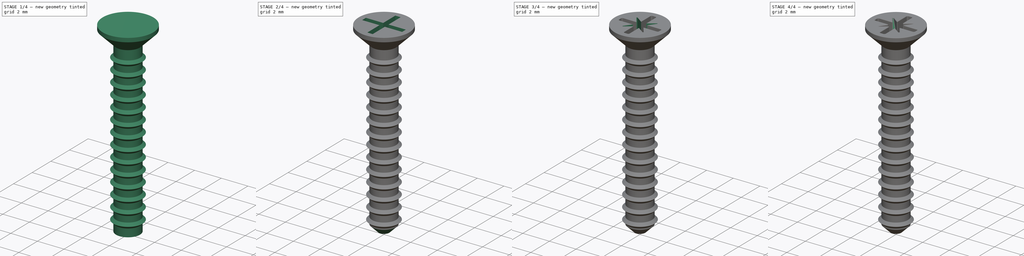
[diagram: build sequence overview — one tinted view per stage of 4, left to right]
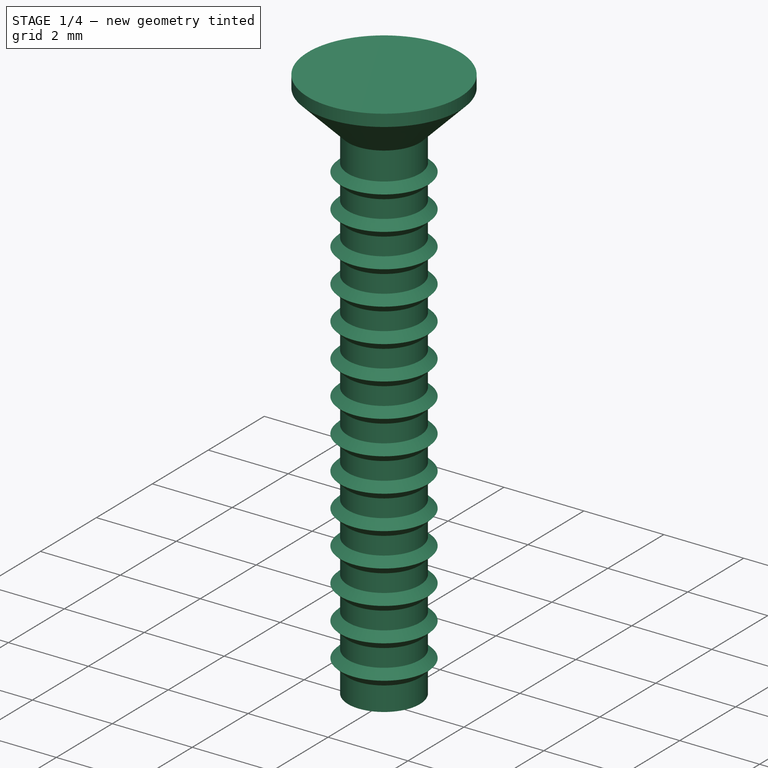
[diagram: stage 1 of 4 — iso view after this stage's code; geometry added in this stage tinted green]
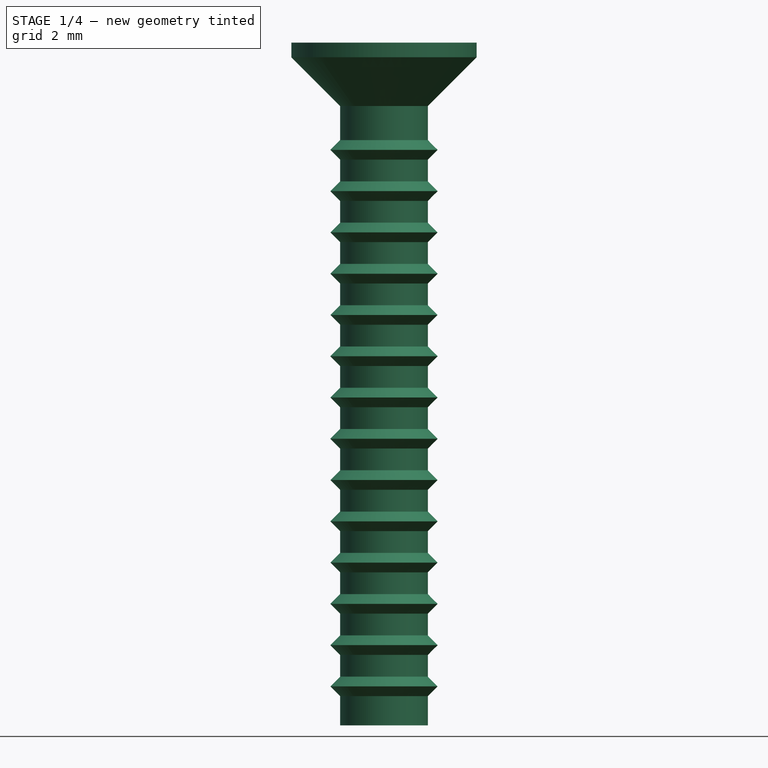
[diagram: stage 1 of 4 — front view after this stage's code; geometry added in this stage tinted green]
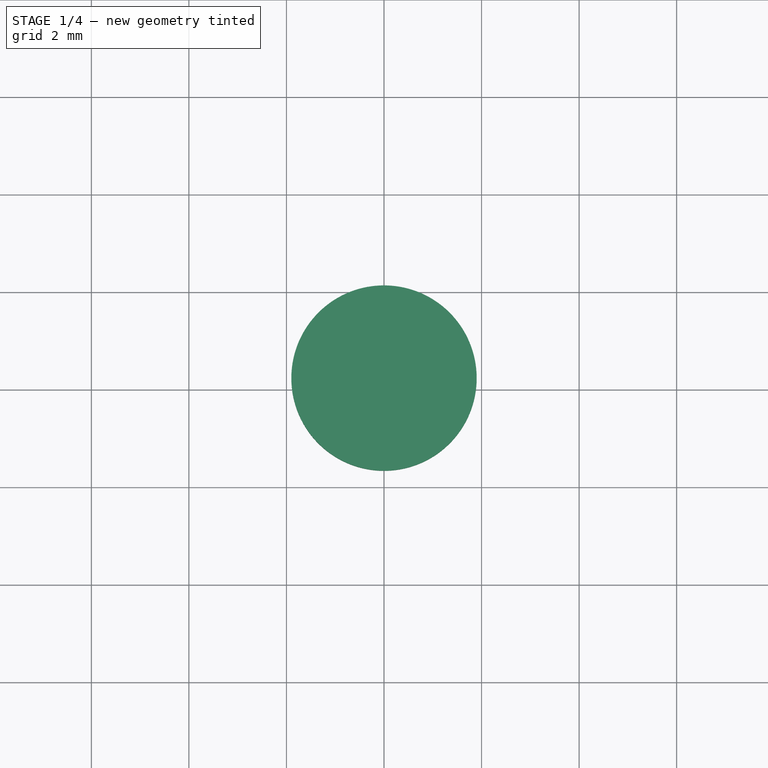
[diagram: stage 1 of 4 — top view after this stage's code; geometry added in this stage tinted green]
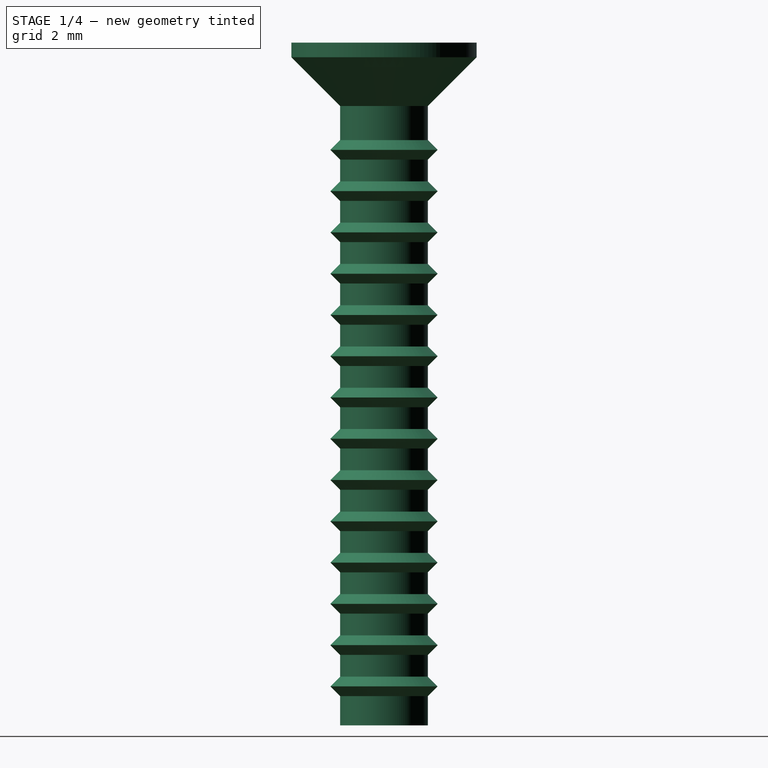
[diagram: stage 1 of 4 — right view after this stage's code; geometry added in this stage tinted green]
FCSTD DOCUMENT  (FreeCAD 0.18R16131 (Git))
Label: screw
License: All rights reserved
LicenseURL: http://en.wikipedia.org/wiki/All_rights_reserved
objects: Sketcher::SketchObject×4, PartDesign::Revolution×2, PartDesign::Chamfer×2, PartDesign::Pocket×2, PartDesign::PolarPattern×2, PartDesign::Fillet×2, PartDesign::LinearPattern×1, PartDesign::Draft×1, PartDesign::Body×1
note: 21 computed .brp shape members not serialized (recipe doc carries the construction recipe); baked Part::Feature solids carry a one-line shape summary decoded from their .brp

FEATURE [Sketcher::SketchObject] Sketch
  MapMode = 5
  Placement = pos=(0,0,0) rot=(1,0,0;1.5708rad)
  Support = -> [XZ_Plane]
  sketch-geometry (6):
    g0: LineSegment StartX=0 StartY=0 StartZ=0 EndX=-1.9 EndY=0 EndZ=0
    g1: LineSegment StartX=-1.9 StartY=0 StartZ=0 EndX=-1.9 EndY=-0.3 EndZ=0
    g2: LineSegment StartX=-1.9 StartY=-0.3 StartZ=0 EndX=-0.9 EndY=-1.3 EndZ=0
    g3: LineSegment StartX=-0.9 StartY=-1.3 StartZ=0 EndX=-0.9 EndY=-14 EndZ=0
    g4: LineSegment StartX=-0.9 StartY=-14 StartZ=0 EndX=0 EndY=-14 EndZ=0
    g5: LineSegment StartX=0 StartY=-14 StartZ=0 EndX=0 EndY=0 EndZ=0
  constraints (17):
    c: Coincident(g0,g-1)
    c: PointOnObject(g0,g-1)
    c: Coincident(g1,g0)
    c: Vertical(g1)
    c: Coincident(g2,g1)
    c: Coincident(g3,g2)
    c: Coincident(g4,g3)
    c: Horizontal(g4)
    c: PointOnObject(g4,g-2)
    c: Coincident(g5,g4)
    c: Coincident(g5,g0)
    c: Vertical(g3)
    c: DistanceY(g5,g5) = 14
    c: DistanceX(g0,g0) = 1.9
    c: Angle(g2,g3) = 2.35619
    c: DistanceX(g4,g4) = 0.9
    c: DistanceY(g2,g0) = 1.3
FEATURE [PartDesign::Revolution] Revolution
  Angle = 360
  Axis = (0,2e-16,1)
  Base = (0,0,0)
  Placement = pos=(0,0,0) rot=(1,0,0;1.5708rad)
  Profile = -> Sketch
  ReferenceAxis = -> Sketch [V_Axis]
FEATURE [Sketcher::SketchObject] Sketch001
  MapMode = 5
  Placement = pos=(0,0,0) rot=(1,0,0;1.5708rad)
  Support = -> [XZ_Plane]
  sketch-geometry (3):
    g0: LineSegment StartX=-0.8 StartY=-12.9 StartZ=0 EndX=-0.8 EndY=-13.5 EndZ=0
    g1: LineSegment StartX=-0.8 StartY=-13.5 StartZ=0 EndX=-1.1 EndY=-13.2 EndZ=0
    g2: LineSegment StartX=-1.1 StartY=-13.2 StartZ=0 EndX=-0.8 EndY=-12.9 EndZ=0
  constraints (9):
    c: Coincident(g0,g1)
    c: Coincident(g1,g2)
    c: Coincident(g2,g0)
    c: Equal(g2,g1)
    c: DistanceY(g0,g0) = 0.6
    c: DistanceX(g1,g-1) = 1.1
    c: DistanceX(g0,g-1) = 0.8
    c: Vertical(g0)
    c: DistanceY(g0,g-1) = 13.5
FEATURE [PartDesign::Revolution] Revolution001
  Angle = 360
  Axis = (0,2e-16,1)
  Base = (0,0,0)
  BaseFeature = -> Revolution
  Placement = pos=(0,0,0) rot=(1,0,0;1.5708rad)
  Profile = -> Sketch001
  ReferenceAxis = -> Sketch001 [V_Axis]
FEATURE [PartDesign::LinearPattern] LinearPattern
  BaseFeature = -> Revolution001
  Direction = -> Z_Axis
  Length = 11
  Occurrences = 14
  Originals = -> [Revolution001]
  Placement = pos=(0,0,0) rot=(1,0,0;1.5708rad)
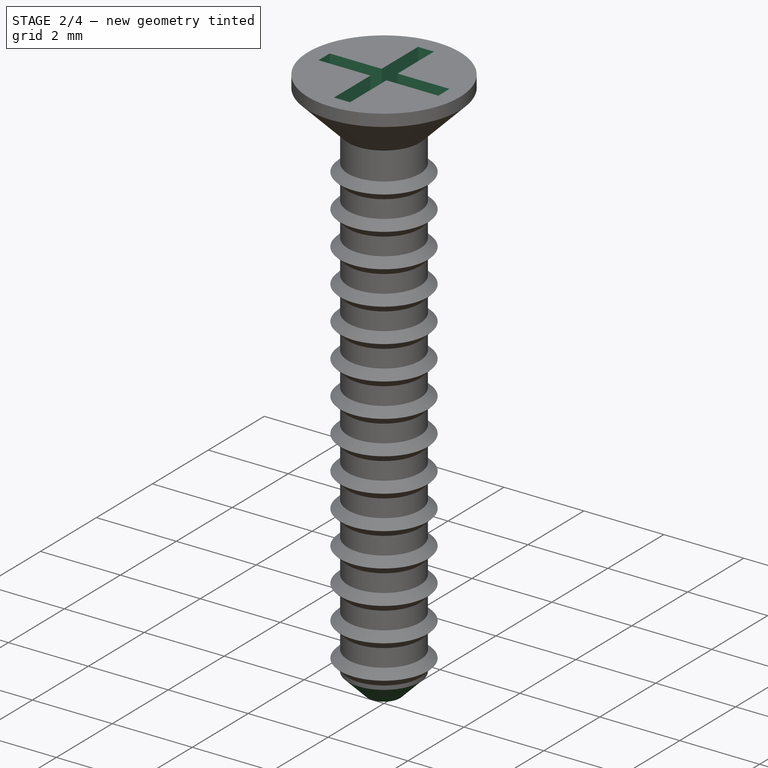
[diagram: stage 2 of 4 — iso view after this stage's code; geometry added in this stage tinted green]
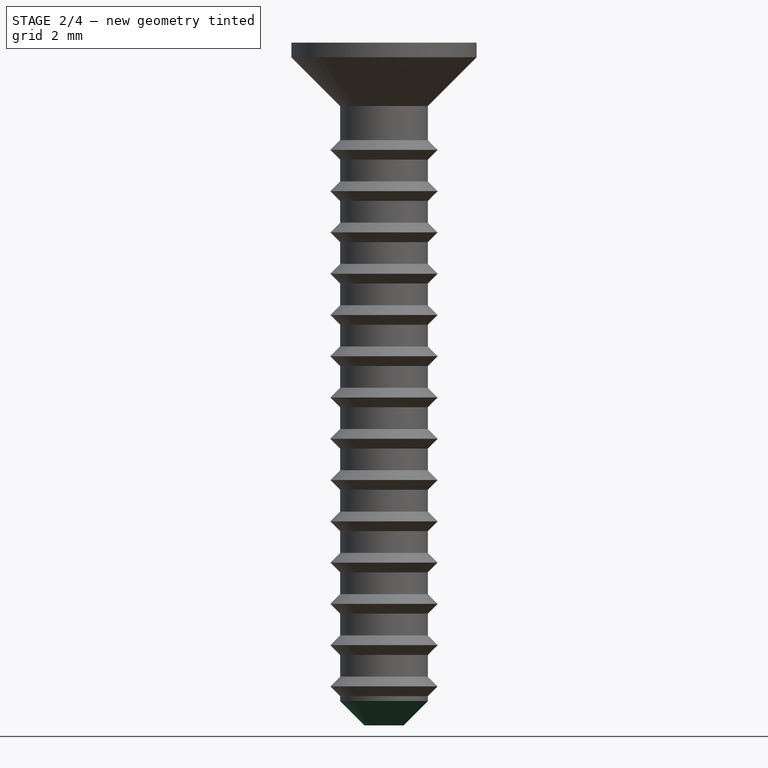
[diagram: stage 2 of 4 — front view after this stage's code; geometry added in this stage tinted green]
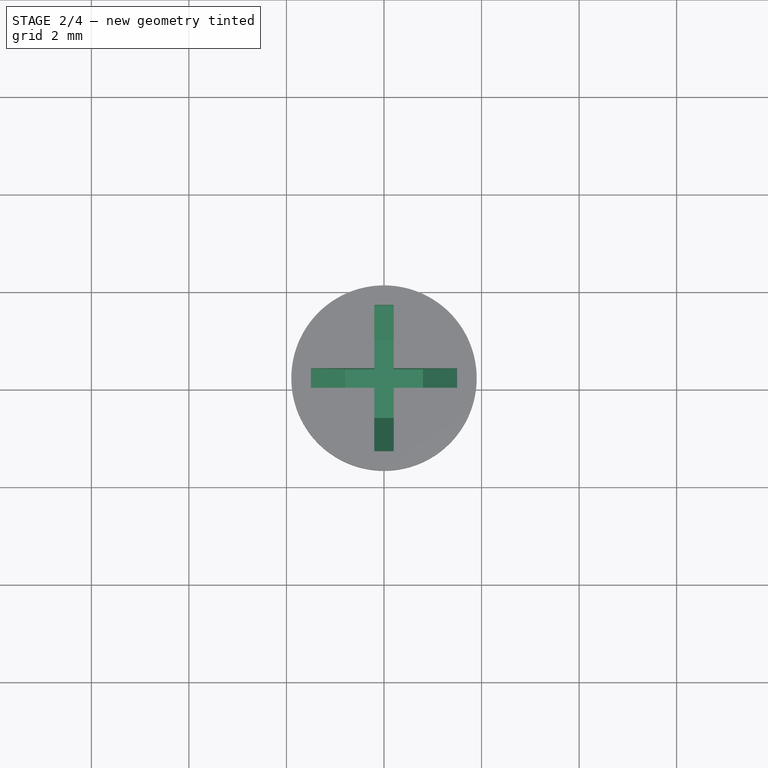
[diagram: stage 2 of 4 — top view after this stage's code; geometry added in this stage tinted green]
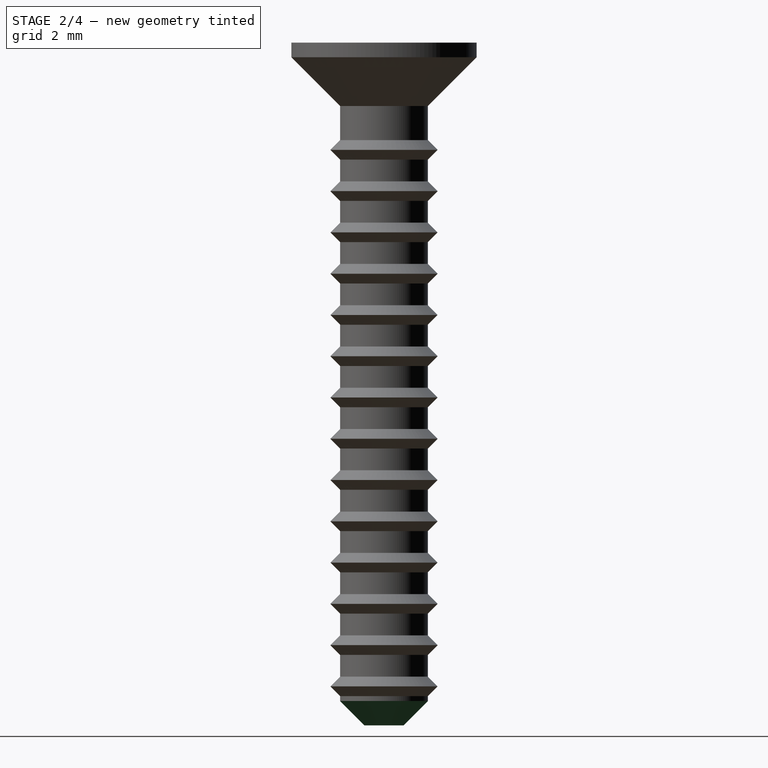
[diagram: stage 2 of 4 — right view after this stage's code; geometry added in this stage tinted green]
FEATURE [PartDesign::Chamfer] Chamfer
  Base = -> LinearPattern [Edge91]
  BaseFeature = -> LinearPattern
  Placement = pos=(0,0,0) rot=(1,0,0;1.5708rad)
  Size = 0.5
FEATURE [Sketcher::SketchObject] Sketch002
  MapMode = 5
  Placement = pos=(0,0,0) rot=(1,0,0;1.5708rad)
  Support = -> [XZ_Plane]
  sketch-geometry (7):
    g0: LineSegment StartX=0 StartY=0 StartZ=0 EndX=-1.5 EndY=0 EndZ=0
    g1: LineSegment StartX=-1.5 StartY=0 StartZ=0 EndX=-1.5 EndY=-0.4 EndZ=0
    g2: LineSegment StartX=-1.5 StartY=-0.4 StartZ=0 EndX=-0.8 EndY=-1.1 EndZ=0
    g3: LineSegment StartX=0 StartY=0 StartZ=0 EndX=1.5 EndY=0 EndZ=0
    g4: LineSegment StartX=1.5 StartY=0 StartZ=0 EndX=1.5 EndY=-0.4 EndZ=0
    g5: LineSegment StartX=1.5 StartY=-0.4 StartZ=0 EndX=0.8 EndY=-1.1 EndZ=0
    g6: LineSegment StartX=0.8 StartY=-1.1 StartZ=0 EndX=-0.8 EndY=-1.1 EndZ=0
  constraints (20):
    c: Coincident(g0,g-1)
    c: PointOnObject(g0,g-1)
    c: Coincident(g1,g0)
    c: Vertical(g1)
    c: Coincident(g2,g1)
    c: Coincident(g3,g0)
    c: PointOnObject(g3,g-1)
    c: Coincident(g4,g3)
    c: Vertical(g4)
    c: Coincident(g5,g4)
    c: Coincident(g6,g5)
    c: Coincident(g6,g2)
    c: Horizontal(g6)
    c: Equal(g1,g4)
    c: Equal(g3,g0)
    c: Angle(g2,g1) = 2.35619
    c: Perpendicular(g5,g2)
    c: DistanceY(g1,g1) = 0.4
    c: DistanceY(g2,g0) = 1.1
    c: DistanceX(g0,g3) = 3
FEATURE [PartDesign::Pocket] Pocket
  BaseFeature = -> Chamfer
  Length = 0.4
  Length2 = 100
  Midplane = true
  Placement = pos=(0,0,0) rot=(1,0,0;1.5708rad)
  Profile = -> Sketch002
  Type = 0
FEATURE [PartDesign::PolarPattern] PolarPattern
  Angle = 90
  Axis = -> Z_Axis
  BaseFeature = -> Pocket
  Occurrences = 2
  Originals = -> [Pocket]
  Placement = pos=(0,0,0) rot=(1,0,0;1.5708rad)
  Refine = true
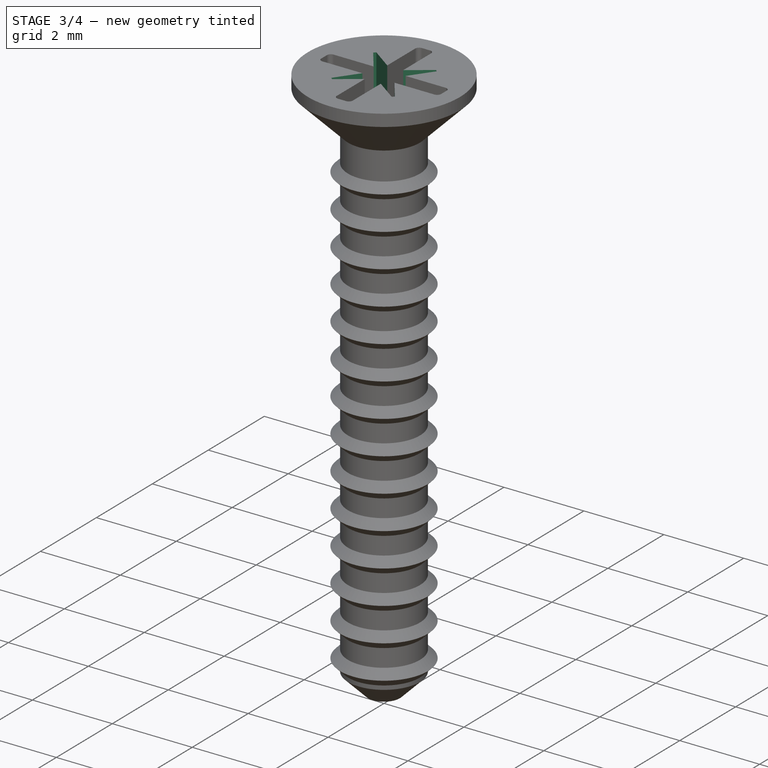
[diagram: stage 3 of 4 — iso view after this stage's code; geometry added in this stage tinted green]
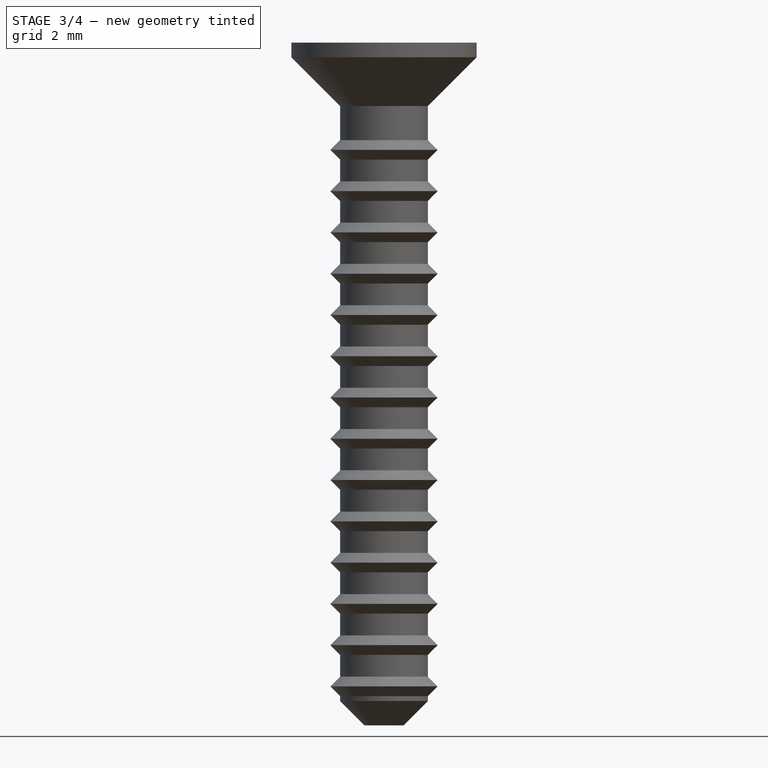
[diagram: stage 3 of 4 — front view after this stage's code; geometry added in this stage tinted green]
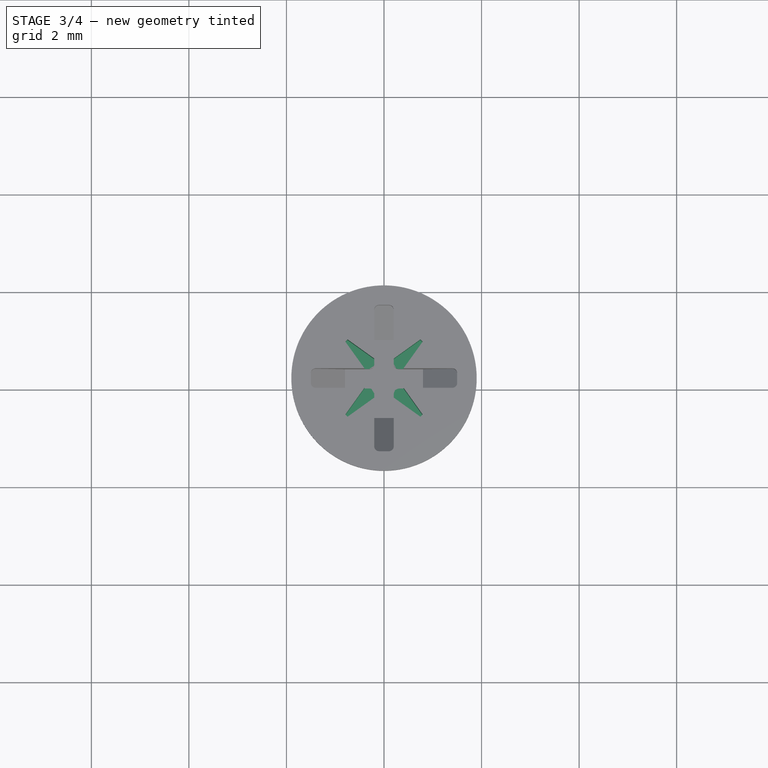
[diagram: stage 3 of 4 — top view after this stage's code; geometry added in this stage tinted green]
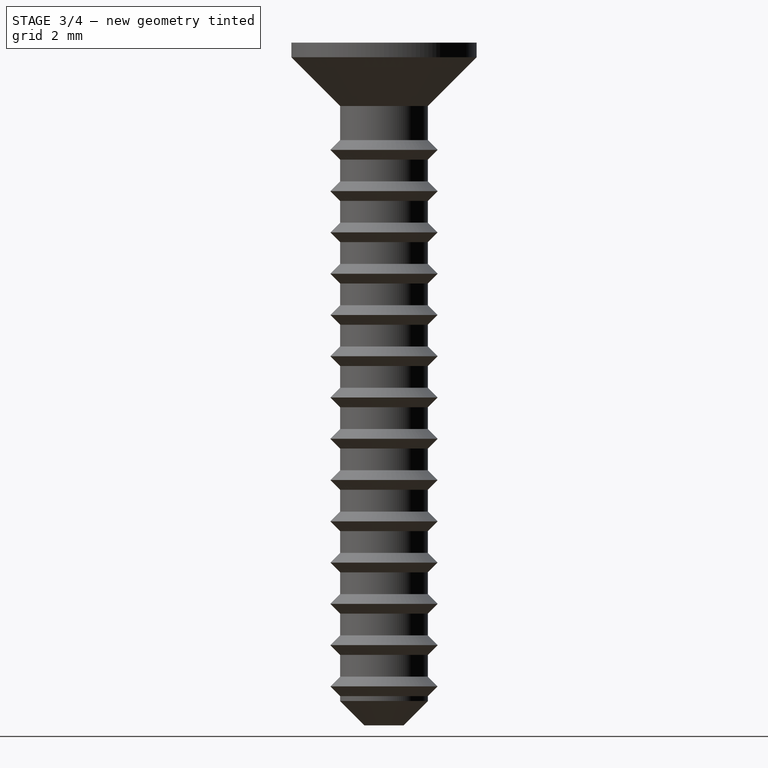
[diagram: stage 3 of 4 — right view after this stage's code; geometry added in this stage tinted green]
FEATURE [PartDesign::Fillet] Fillet
  Base = -> PolarPattern [Edge130,Edge106,Edge122,Edge112,Edge133,Edge135,Edge109,Edge111,Edge115,Edge119,Edge123,Edge127]
  BaseFeature = -> PolarPattern
  Placement = pos=(0,0,0) rot=(1,0,0;1.5708rad)
  Radius = 0.1
FEATURE [Sketcher::SketchObject] Sketch003
  MapMode = 5
  Placement = pos=(0,0,0) rot=(0,0,1;3.14159rad)
  sketch-geometry (5):
    g0: LineSegment StartX=0 StartY=0 StartZ=0 EndX=-0.257806 EndY=0 EndZ=0
    g1: LineSegment StartX=0 StartY=-0.257806 StartZ=0 EndX=0 EndY=0 EndZ=0
    g2: LineSegment StartX=-0.257806 StartY=0 StartZ=0 EndX=-0.792902 EndY=-0.747205 EndZ=0
    g3: LineSegment StartX=0 StartY=-0.257806 StartZ=0 EndX=-0.747205 EndY=-0.792902 EndZ=0
    g4: LineSegment StartX=-0.747205 StartY=-0.792902 StartZ=0 EndX=-0.792902 EndY=-0.747205 EndZ=0
  constraints (11):
    c: Coincident(g-1,g0)
    c: PointOnObject(g0,g-1)
    c: Coincident(g1,g0)
    c: PointOnObject(g1,g-2)
    c: Equal(g1,g0)
    c: Coincident(g2,g0)
    c: Coincident(g3,g1)
    c: Coincident(g4,g3)
    c: Coincident(g4,g2)
    c: Equal(g2,g3)
    c: Angle(g1,g4) = 0.785398
FEATURE [PartDesign::Pocket] Pocket001
  BaseFeature = -> Fillet
  Length = 0.8
  Length2 = 100
  Placement = pos=(0,0,0) rot=(1,0,0;1.5708rad)
  Profile = -> Sketch003
  Refine = true
  Type = 0
FEATURE [PartDesign::PolarPattern] PolarPattern001
  Angle = 360
  Axis = -> Z_Axis
  BaseFeature = -> Pocket001
  Occurrences = 4
  Originals = -> [Pocket001]
  Placement = pos=(0,0,0) rot=(1,0,0;1.5708rad)
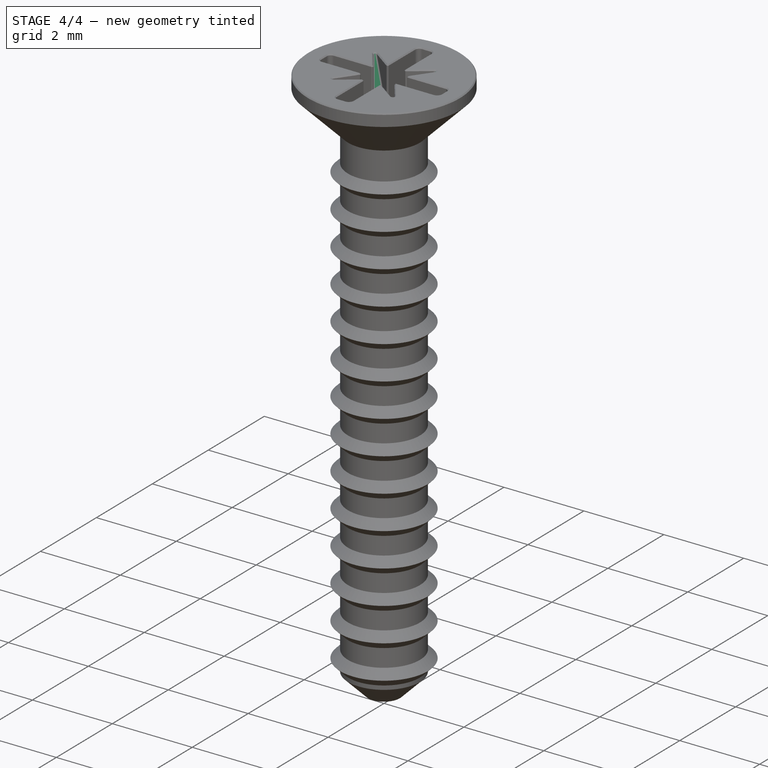
[diagram: stage 4 of 4 — iso view after this stage's code; geometry added in this stage tinted green]
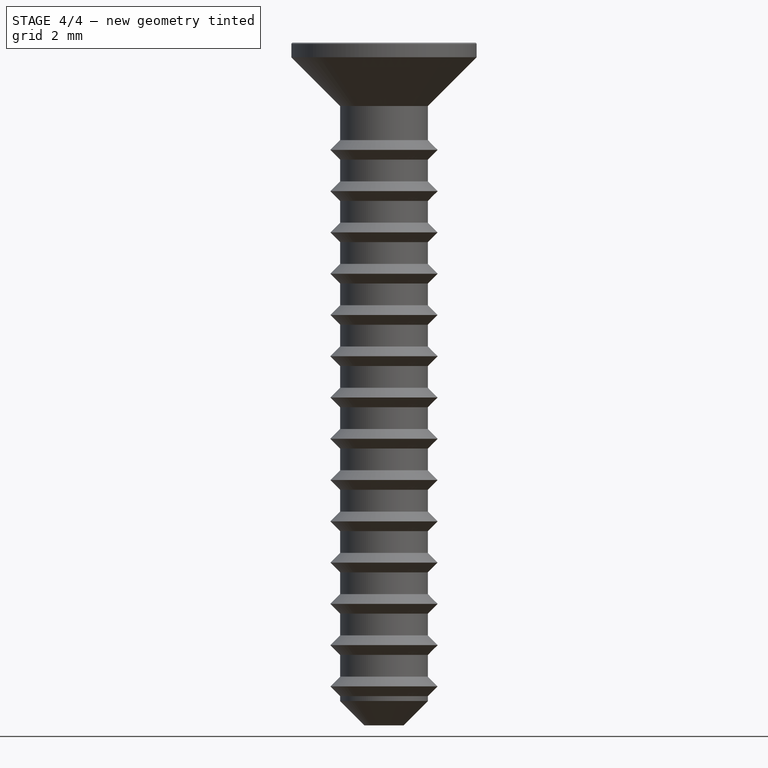
[diagram: stage 4 of 4 — front view after this stage's code; geometry added in this stage tinted green]
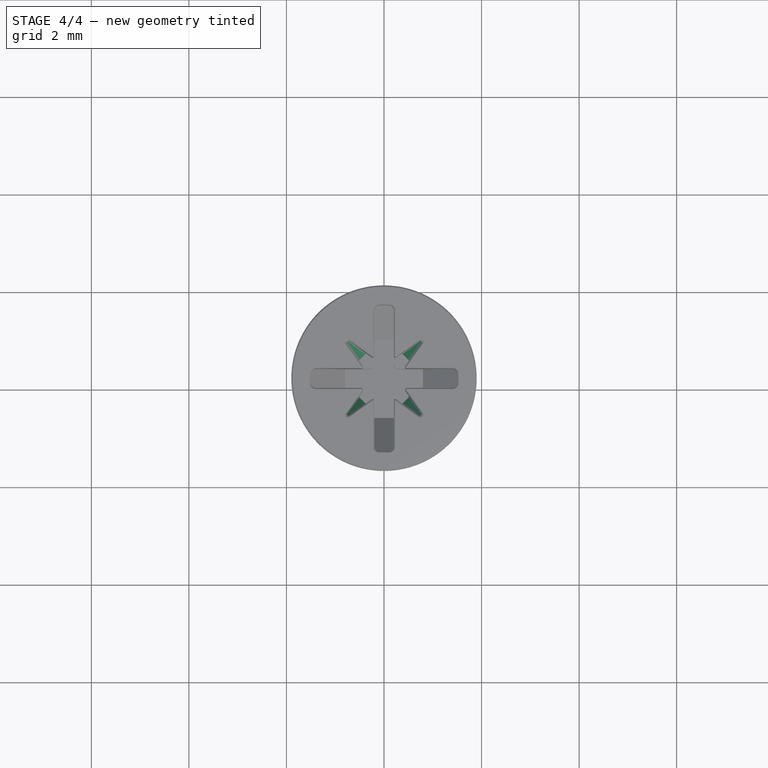
[diagram: stage 4 of 4 — top view after this stage's code; geometry added in this stage tinted green]
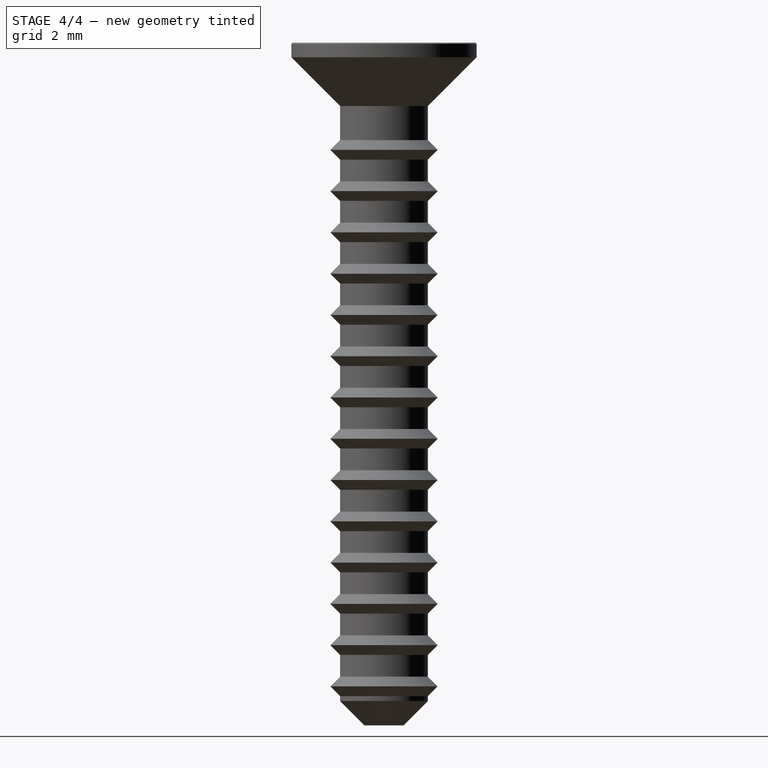
[diagram: stage 4 of 4 — right view after this stage's code; geometry added in this stage tinted green]
FEATURE [PartDesign::Draft] Draft
  Angle = 30
  Base = -> PolarPattern001 [Face25,Face33,Face17,Face9]
  BaseFeature = -> PolarPattern001
  NeutralPlane = -> PolarPattern001 [Face1]
  Placement = pos=(0,0,0) rot=(1,0,0;1.5708rad)
FEATURE [PartDesign::Fillet] Fillet001
  Base = -> Draft [Edge99,Edge102,Edge97,Edge96,Edge116,Edge119,Edge121,Edge39,Edge50,Edge53,Edge55,Edge58,Edge74,Edge75,Edge77,Edge80]
  BaseFeature = -> Draft
  Placement = pos=(0,0,0) rot=(1,0,0;1.5708rad)
  Radius = 0.03
FEATURE [PartDesign::Chamfer] Chamfer001
  Base = -> Fillet001 [Face1]
  BaseFeature = -> Fillet001
  Placement = pos=(0,0,0) rot=(1,0,0;1.5708rad)
  Size = 0.025
FEATURE [PartDesign::Body] Body
  Group = -> [Sketch,Revolution,Sketch001,Revolution001,LinearPattern,Chamfer,Sketch002,Pocket,PolarPattern,Fillet,Sketch003,Pocket001,PolarPattern001,Draft,Fillet001,Chamfer001]
  Origin = -> Origin
  Tip = -> Chamfer001
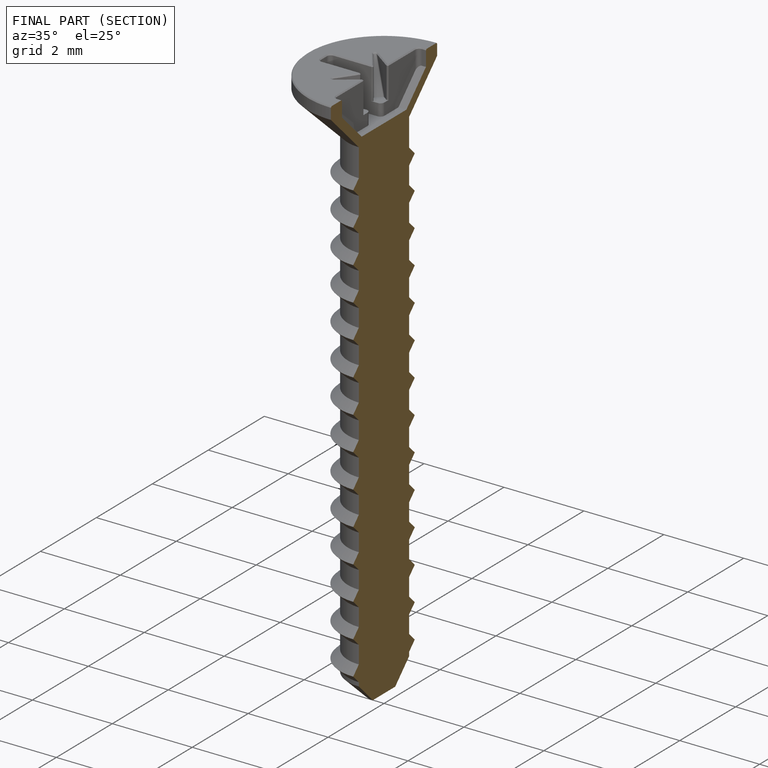
[diagram: finished part — half-section view (interior)]
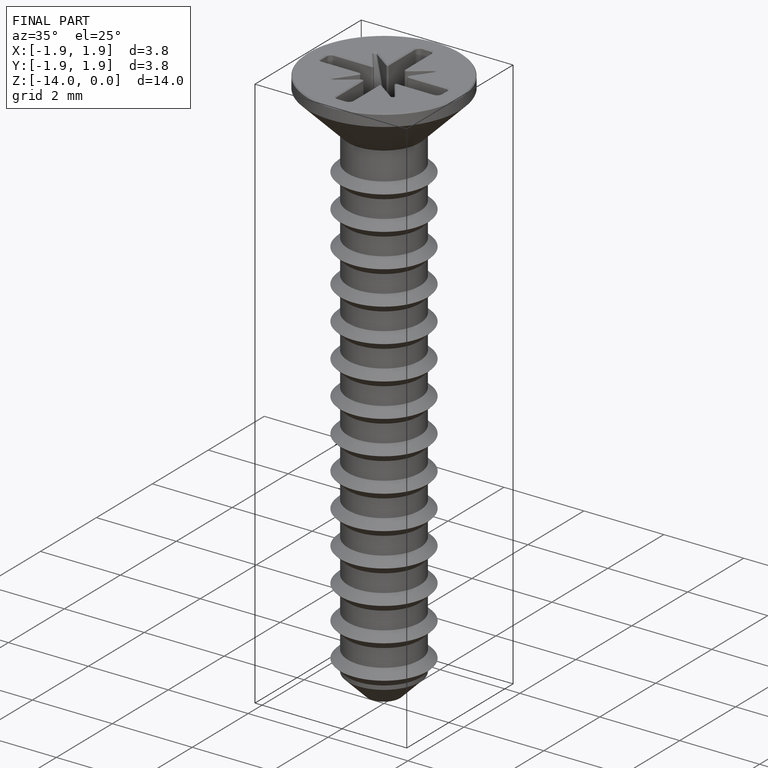
[diagram: finished part — iso view with bounding-box wireframe]
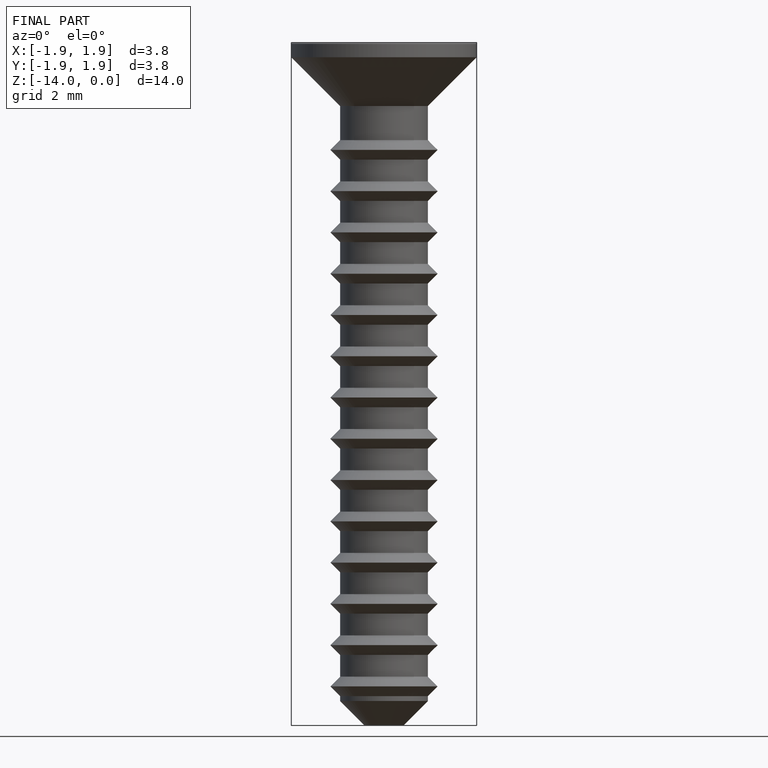
[diagram: finished part — front view with bounding-box wireframe]
